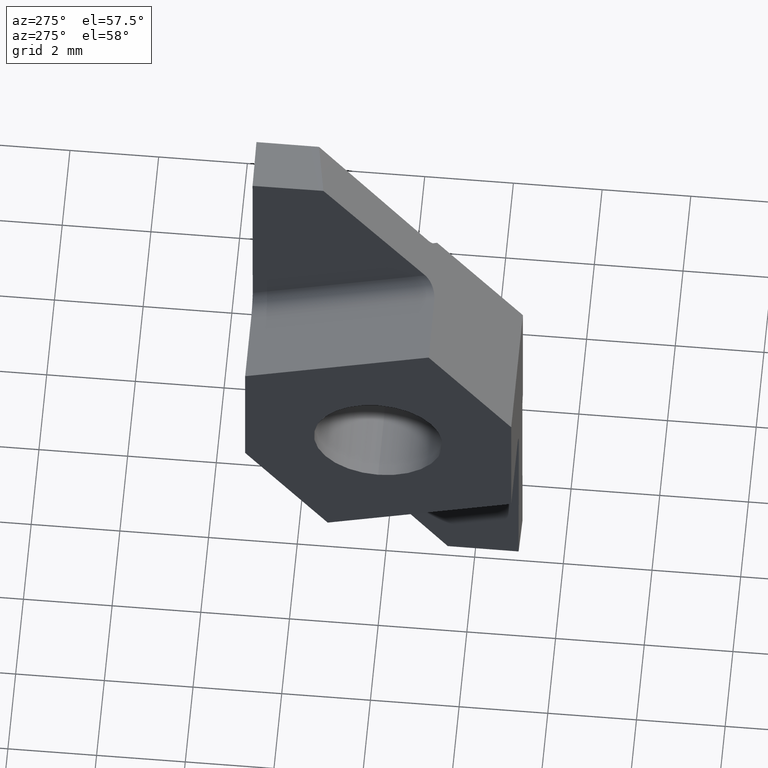
[diagram: clean part render]
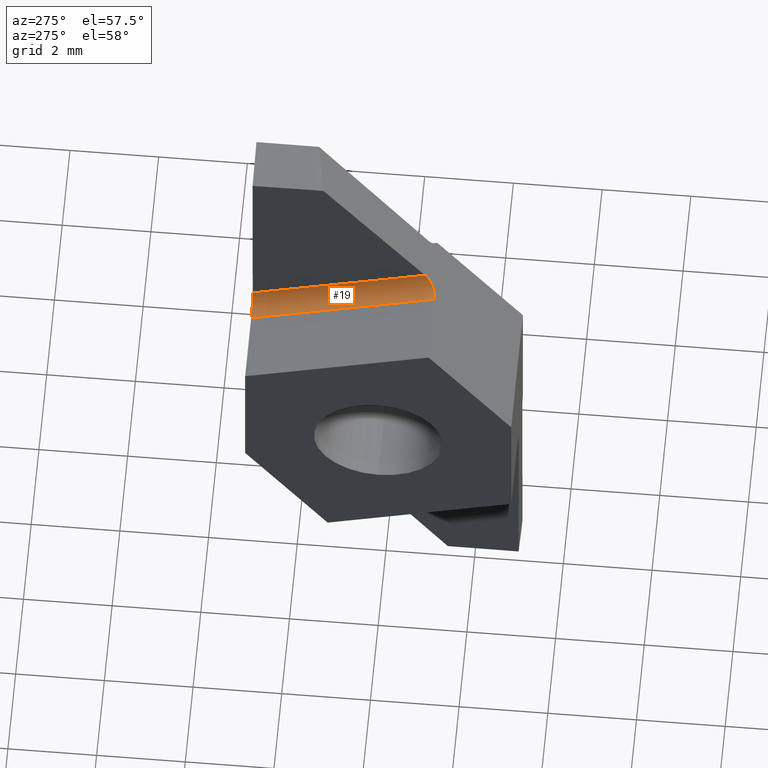
[diagram: same view with one face highlighted and labeled with its STEP entity id]
A machine part, auxiliary view. The second image highlights one B-rep face of the part: STEP entity #19.
In plain terms, the highlighted cylindrical surface (edge-blend (fillet) strip) has radius 0.4 mm, axis along (0, -0.9511, 0.309).
Its self-contained STEP definition (entity closure, byte-faithful):
#19 = ADVANCED_FACE ( 'NONE', ( #568 ), #305, .F. ) ;
#45 = CARTESIAN_POINT ( 'NONE',  ( 1.552902005048489853, -1.130420593828511899, 3.615932469007118399 ) ) ;
#56 = CARTESIAN_POINT ( 'NONE',  ( 1.787371315628932145, -1.129253392658269073, 3.617599405031864723 ) ) ;
#73 = CARTESIAN_POINT ( 'NONE',  ( 1.552902005048489409, 2.999999999999831246, 2.273877464346301114 ) ) ;
#88 = DIRECTION ( 'NONE',  ( 0.000000000000000000, 0.9510565162951555296, -0.3090169943749411785 ) ) ;
#90 = VERTEX_POINT ( 'NONE', #370 ) ;
#115 = DIRECTION ( 'NONE',  ( 2.704990084214964151E-20, -0.9510565162951556406, 0.3090169943749411785 ) ) ;
#128 = LINE ( 'NONE', #372, #543 ) ;
#129 = DIRECTION ( 'NONE',  ( 5.093655730767969543E-19, -0.9510565162951555296, 0.3090169943749411230 ) ) ;
#131 = EDGE_CURVE ( 'NONE', #480, #555, #140, .T. ) ;
#140 = LINE ( 'NONE', #275, #423 ) ;
#150 = CARTESIAN_POINT ( 'NONE',  ( 1.951716850284155313, -1.028943747718853663, 3.760856424509101181 ) ) ;
#153 = ORIENTED_EDGE ( 'NONE', *, *, #131, .F. ) ;
#182 = ORIENTED_EDGE ( 'NONE', *, *, #501, .F. ) ;
#207 = EDGE_LOOP ( 'NONE', ( #622, #153, #246, #182 ) ) ;
#210 = CARTESIAN_POINT ( 'NONE',  ( 1.949565382969295158, 2.999999999999831246, 2.698306981268059790 ) ) ;
#215 = CARTESIAN_POINT ( 'NONE',  ( 1.787371315628931479, 2.999999999999831246, 2.275923647020726470 ) ) ;
#222 = DIRECTION ( 'NONE',  ( 0.000000000000000000, -0.3090169943749418446, -0.9510565162951553075 ) ) ;
#236 = AXIS2_PLACEMENT_3D ( 'NONE', #363, #115, #222 ) ;
#246 = ORIENTED_EDGE ( 'NONE', *, *, #395, .F. ) ;
#265 = EDGE_CURVE ( 'NONE', #555, #90, #341, .T. ) ;
#274 = CARTESIAN_POINT ( 'NONE',  ( 1.949565382969295158, 2.999999999999831246, 2.698306981268059790 ) ) ;
#275 = CARTESIAN_POINT ( 'NONE',  ( 1.949565382969295380, -1.004717758376801884, 3.999518658818292938 ) ) ;
#295 = CARTESIAN_POINT ( 'NONE',  ( 1.949565382969295380, -0.8883138479216154959, 3.961696735592872720 ) ) ;
#305 = CYLINDRICAL_SURFACE ( 'NONE', #236, 0.4000000000000002442 ) ;
#341 =( BOUNDED_CURVE ( )  B_SPLINE_CURVE ( 3, ( #635, #150, #56, #45 ),
 .UNSPECIFIED., .F., .F. ) 
 B_SPLINE_CURVE_WITH_KNOTS ( ( 4, 4 ),
 ( 4.703213266088003053, 6.274885753270528888 ),
 .UNSPECIFIED. ) 
 CURVE ( )  GEOMETRIC_REPRESENTATION_ITEM ( )  RATIONAL_B_SPLINE_CURVE ( ( 1.000000000000000000, 0.8045312959125139329, 0.8045312959125139329, 1.000000000000000000 ) ) 
 REPRESENTATION_ITEM ( '' )  );
#363 = CARTESIAN_POINT ( 'NONE',  ( 1.549582221597723297, -3.834357726173466485, 4.915065304970623217 ) ) ;
#370 = CARTESIAN_POINT ( 'NONE',  ( 1.552902005048489853, -1.130420593828511899, 3.615932469007118399 ) ) ;
#372 = CARTESIAN_POINT ( 'NONE',  ( 1.552902005048489631, 2.998973231275686491, 2.274211081728251926 ) ) ;
#395 = EDGE_CURVE ( 'NONE', #614, #480, #510, .T. ) ;
#423 = VECTOR ( 'NONE', #129, 1000.000000000000114 ) ;
#480 = VERTEX_POINT ( 'NONE', #274 ) ;
#501 = EDGE_CURVE ( 'NONE', #90, #614, #128, .T. ) ;
#510 =( BOUNDED_CURVE ( )  B_SPLINE_CURVE ( 3, ( #73, #215, #610, #210 ),
 .UNSPECIFIED., .F., .F. ) 
 B_SPLINE_CURVE_WITH_KNOTS ( ( 4, 4 ),
 ( 3.149892207498848684, 4.721564694681373631 ),
 .UNSPECIFIED. ) 
 CURVE ( )  GEOMETRIC_REPRESENTATION_ITEM ( )  RATIONAL_B_SPLINE_CURVE ( ( 1.000000000000000000, 0.8045312959125141550, 0.8045312959125141550, 1.000000000000000000 ) ) 
 REPRESENTATION_ITEM ( '' )  );
#543 = VECTOR ( 'NONE', #88, 1000.000000000000114 ) ;
#555 = VERTEX_POINT ( 'NONE', #295 ) ;
#568 = FACE_OUTER_BOUND ( 'NONE', #207, .T. ) ;
#610 = CARTESIAN_POINT ( 'NONE',  ( 1.951716850284154869, 2.999999999999831246, 2.451773245860907391 ) ) ;
#614 = VERTEX_POINT ( 'NONE', #631 ) ;
#622 = ORIENTED_EDGE ( 'NONE', *, *, #265, .F. ) ;
#631 = CARTESIAN_POINT ( 'NONE',  ( 1.552902005048489409, 2.999999999999831246, 2.273877464346301114 ) ) ;
#635 = CARTESIAN_POINT ( 'NONE',  ( 1.949565382969295380, -0.8883138479216154959, 3.961696735592872720 ) ) ;